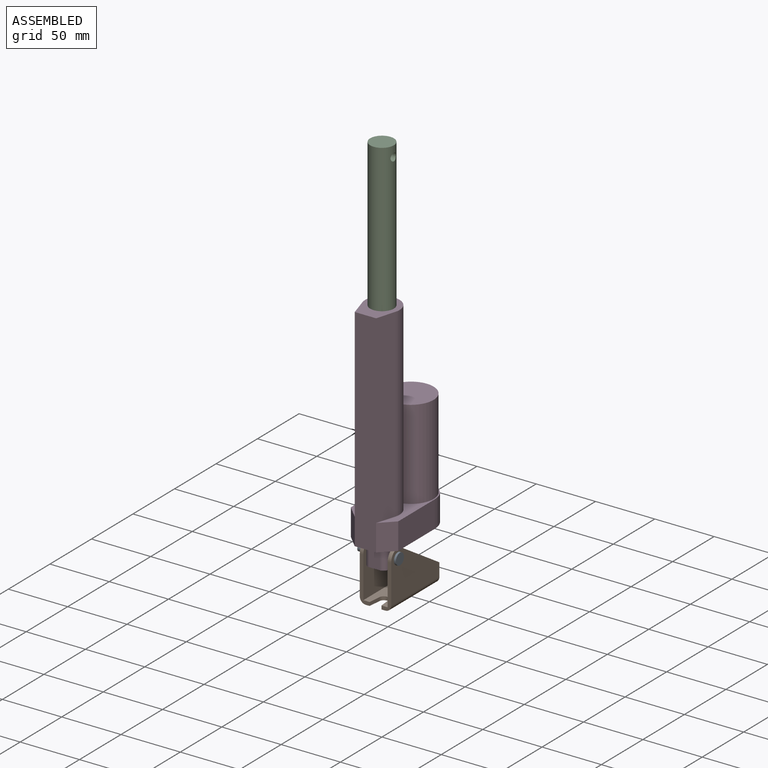
[diagram: assembled view]
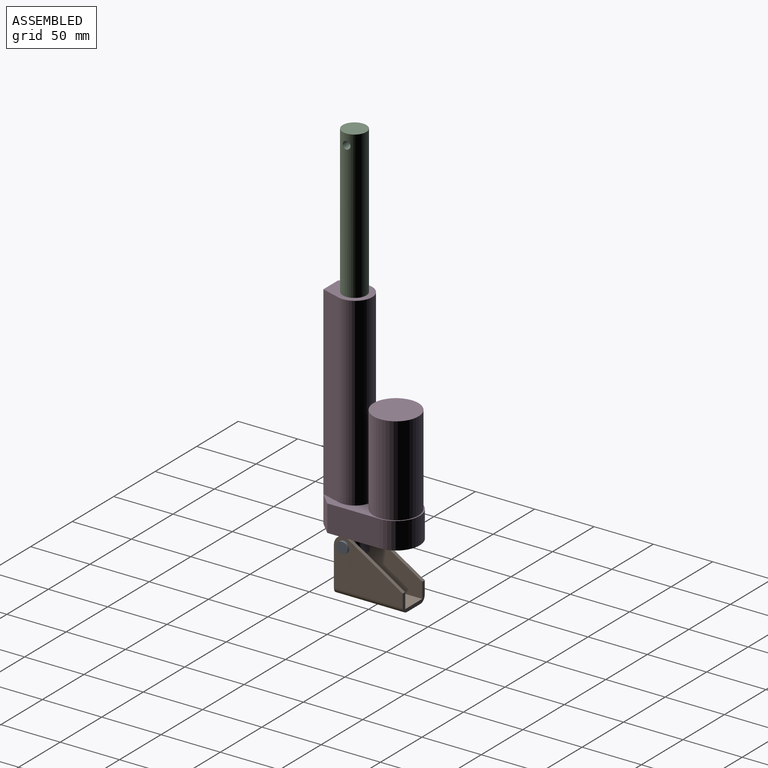
[diagram: assembled view, second angle]
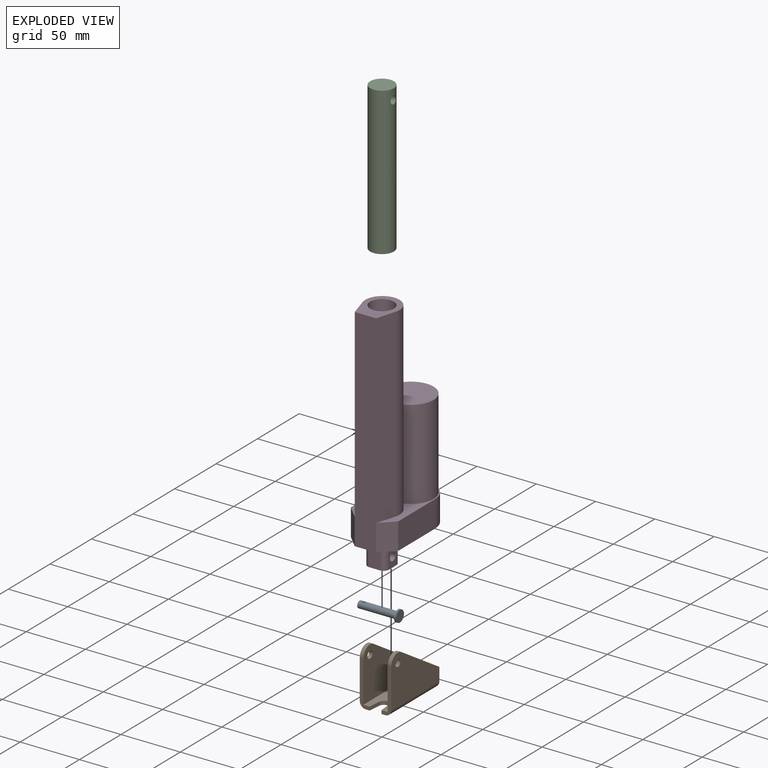
[diagram: exploded view]
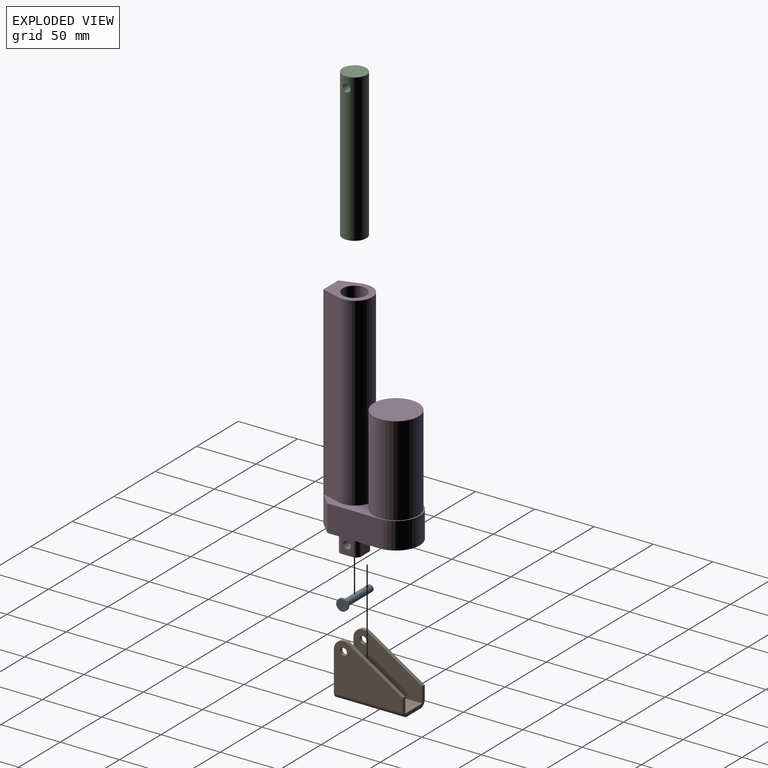
[diagram: exploded view, second angle]
ASSEMBLY  parts=4 mates=3
PART A: 7 faces, bbox 34x9.8x9.8 mm
  f0: cylinder r=2.88mm len=31.75mm, axis (1,0,0), area 563.5mm2, adj f4,f5,f6
  f1: cylinder r=4.88mm len=9.75mm, axis (1,0,0), area 53.6mm2, adj f2,f3
  f2: plane 9.75x9.75mm, normal (-1,0,0), area 38.9mm2, adj f1,f6
  f3: plane 9.75x9.75mm, normal (1,0,0), area 74.7mm2, adj f1
  f4: plane 5.75x5.75mm, normal (-1,0,0), area 26mm2, adj f0
  f5: cylinder r=1.25mm len=5.75mm, axis (0,1,0), area 42.9mm2, adj f0
  f6: cone r=3.38mm half-angle=45deg, axis (1,0,0), area 13.9mm2, adj f0,f2
PART B: 21 faces, bbox 26.5x58x46 mm
  f0: plane 58x43mm, normal (-1,0,0), area 1736.1mm2, adj f7,f8,f10,f14,f15,f18
  f1: plane 58x43mm, normal (1,0,0), area 1736.1mm2, adj f3,f8,f10,f13,f16,f17
  f2: plane 58x41mm, normal (-1,0,0), area 1620.1mm2, adj f3,f8,f13,f16,f17,f20
  f3: plane 38x8.25mm, normal (0,-1,0), area 124.4mm2, adj f1,f2,f4,f10,f11,f13,f20
  f4: plane 10.39x3mm, normal (1,-0.1,0), area 31.3mm2, adj f3,f5,f10,f11
  f5: cylinder r=4mm len=7.96mm, axis (0,0,-1), area 35.4mm2, adj f4,f6,f10,f11
  f6: plane 10.39x3mm, normal (-1,-0.1,0), area 31.3mm2, adj f5,f7,f10,f11
  f7: plane 38x8.25mm, normal (0,-1,0), area 124.4mm2, adj f0,f6,f10,f11,f12,f14,f19
  f8: plane 26.5x16mm, normal (0,1,0), area 146.8mm2, adj f0,f1,f2,f10,f11,f12,f16,f18
  f9: cylinder r=4mm len=8mm, axis (0,0,-1), area 75.4mm2, adj f10,f11
  f10: plane 58x20.5mm, normal (0,0,1), area 1023.4mm2, adj f0,f1,f3,f4,f5,f6,f7,f8
  f11: plane 58x16.5mm, normal (0,0,-1), area 791.4mm2, adj f3,f4,f5,f6,f7,f8,f9,f19
  f12: plane 58x41mm, normal (1,0,0), area 1620.1mm2, adj f7,f8,f14,f15,f18,f19
  f13: cylinder r=8mm len=12.26mm, axis (1,0,0), area 51.2mm2, adj f1,f2,f3,f16
  f14: cylinder r=8mm len=12.26mm, axis (1,0,0), area 51.2mm2, adj f0,f7,f12,f18
  f15: cylinder r=3mm len=6mm, axis (1,0,0), area 56.5mm2, adj f0,f12
  f16: plane 45.74x28.77mm, normal (0,0.53,0.85), area 162.1mm2, adj f1,f2,f8,f13
  f17: cylinder r=3mm len=6mm, axis (1,0,0), area 56.5mm2, adj f1,f2
  f18: plane 45.74x28.77mm, normal (0,0.53,0.85), area 162.1mm2, adj f0,f8,f12,f14
  f19: cylinder r=5mm len=58mm, axis (0,1,0), area 455.5mm2, adj f7,f8,f11,f12
  f20: cylinder r=5mm len=58mm, axis (0,-1,0), area 455.5mm2, adj f2,f3,f8,f11
PART C: 4 faces, bbox 124.5x20x20 mm
  f0: cylinder r=10mm len=124.5mm, axis (-1,0,0), area 7755.4mm2, adj f1,f2,f3
  f1: plane 20x20mm, normal (1,0,0), area 314.2mm2, adj f0
  f2: plane 20x20mm, normal (-1,0,0), area 314.2mm2, adj f0
  f3: cylinder r=3.25mm len=20mm, axis (0,-1,0), area 397.4mm2, adj f0
PART D: 26 faces, bbox 197.5x40x75 mm
  f0: plane 75x40mm, normal (1,0,0), area 749.9mm2, adj f11,f12,f13,f14,f15,f18,f19,f20
  f1: plane 19x9mm, normal (0,0,1), area 171mm2, adj f5,f6,f9,f10
  f2: plane 19x9mm, normal (0,-1,0), area 137.8mm2, adj f5,f6,f7,f10,f25
  f3: plane 19x9mm, normal (0,0,-1), area 171mm2, adj f5,f7,f8,f10
  f4: plane 19x9mm, normal (0,1,0), area 137.8mm2, adj f5,f8,f9,f10,f25
  f5: plane 18x18mm, normal (-1,0,0), area 306.6mm2, adj f1,f2,f3,f4,f6,f7,f8,f9
  f6: cylinder r=4.5mm len=19mm, axis (1,0,0), area 134.3mm2, adj f1,f2,f5,f10
  f7: cylinder r=4.5mm len=19mm, axis (-1,0,0), area 134.3mm2, adj f2,f3,f5,f10
  f8: cylinder r=4.5mm len=19mm, axis (1,0,0), area 134.3mm2, adj f3,f4,f5,f10
  f9: cylinder r=4.5mm len=19mm, axis (-1,0,0), area 134.3mm2, adj f1,f4,f5,f10
  f10: plane 75x40mm, normal (-1,0,0), area 2400.7mm2, adj f1,f2,f3,f4,f6,f7,f8,f9
  f11: plane 22.5x11mm, normal (0,-0.71,0.71), area 350mm2, adj f0,f10,f12,f16
  f12: plane 44x22.5mm, normal (0,-1,0), area 990mm2, adj f0,f10,f11,f13
  f13: cylinder r=20mm len=40mm, axis (-1,0,0), area 1413.7mm2, adj f0,f10,f12,f14
  f14: plane 44x22.5mm, normal (0,1,0), area 990mm2, adj f0,f10,f13,f15
  f15: plane 22.5x11mm, normal (0,0.71,0.71), area 350mm2, adj f0,f10,f14,f16
  f16: plane 178.5x18mm, normal (0,0,1), area 3213mm2, adj f10,f11,f15,f19,f21,f22
  f17: plane 38x38mm, normal (1,0,0), area 1134.1mm2, adj f18
  f18: cylinder r=19mm len=75.5mm, axis (-1,0,0), area 9013.2mm2, adj f0,f17
  f19: plane 156x16.34mm, normal (0,-0.96,0.29), area 2661.2mm2, adj f0,f16,f20,f22
  f20: cylinder r=14.5mm len=156mm, axis (-1,0,0), area 8421.9mm2, adj f0,f19,f21,f22
  f21: plane 156x16.34mm, normal (0,0.96,0.29), area 2661.2mm2, adj f0,f16,f20,f22
  f22: plane 35x29mm, normal (1,0,0), area 509.1mm2, adj f16,f19,f20,f21,f23
  f23: cylinder r=10mm len=100mm, axis (1,0,0), area 6283.2mm2, adj f22,f24
  f24: plane 20x20mm, normal (1,0,0), area 314.2mm2, adj f23
  f25: cylinder r=3.25mm len=18mm, axis (0,-1,0), area 367.6mm2, adj f2,f4
PLACE A rot(axis=(1,0,0),90deg) t=(-105.1,-21,-124.36)mm
PLACE B t=(-120.1,0,-162.36)mm fixed
PLACE C rot(axis=(0.58,-0.58,0.58),120deg) t=(-120.23,-21,-13.36)mm
PLACE D rot(axis=(0.58,-0.58,0.58),120deg) t=(-120.23,-21,-113.36)mm
MATE slider D.f23 <-> C.f0  axis (0,0,1) through (-120.23,-21,65.14)mm
MATE revolute D.f25 <-> A.f0  axis (1,0,0) through (-111.23,-21,-124.36)mm
MATE revolute A.f1 <-> B.f13  axis (-1,0,0) through (-106.85,-21,-124.36)mm
